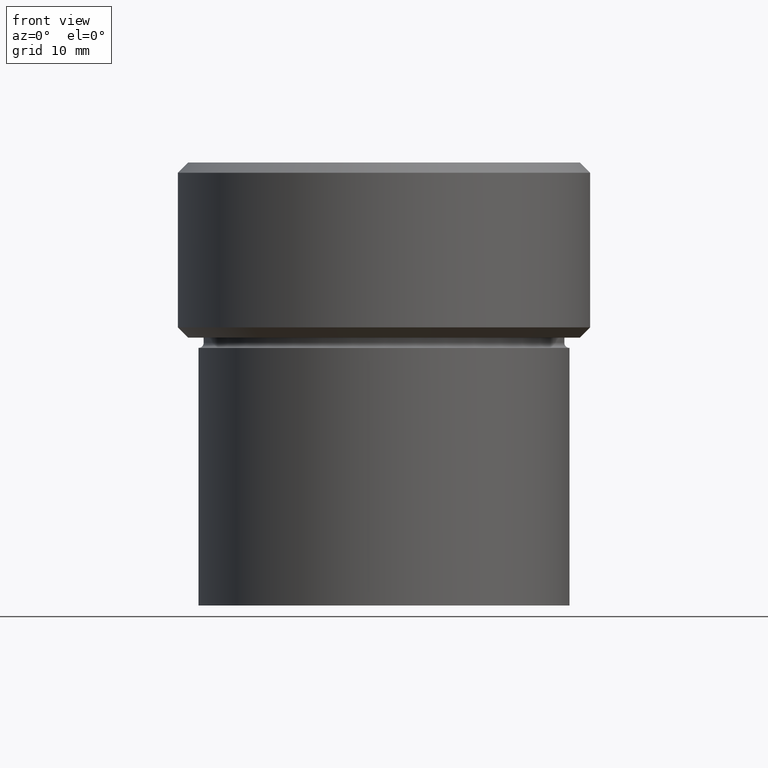
[diagram: clean part render]
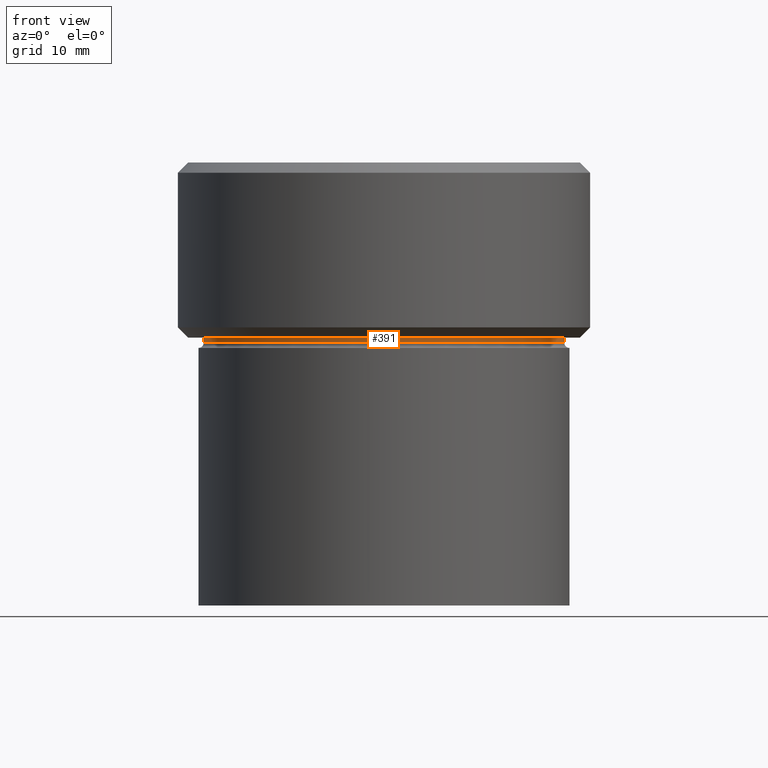
[diagram: same view with one face highlighted and labeled with its STEP entity id]
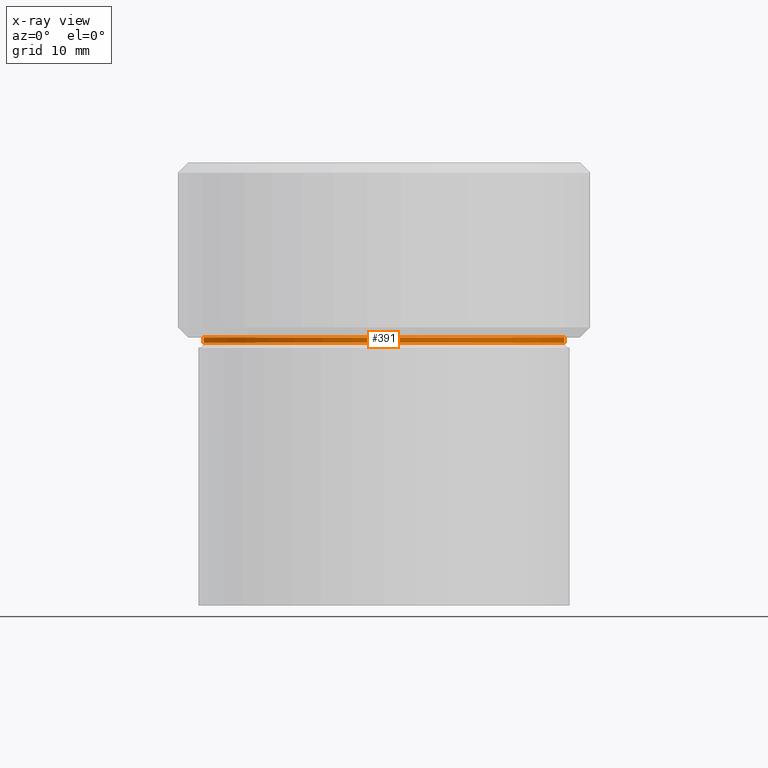
[diagram: x-ray of the same camera — body ghosted, the highlighted face saturated]
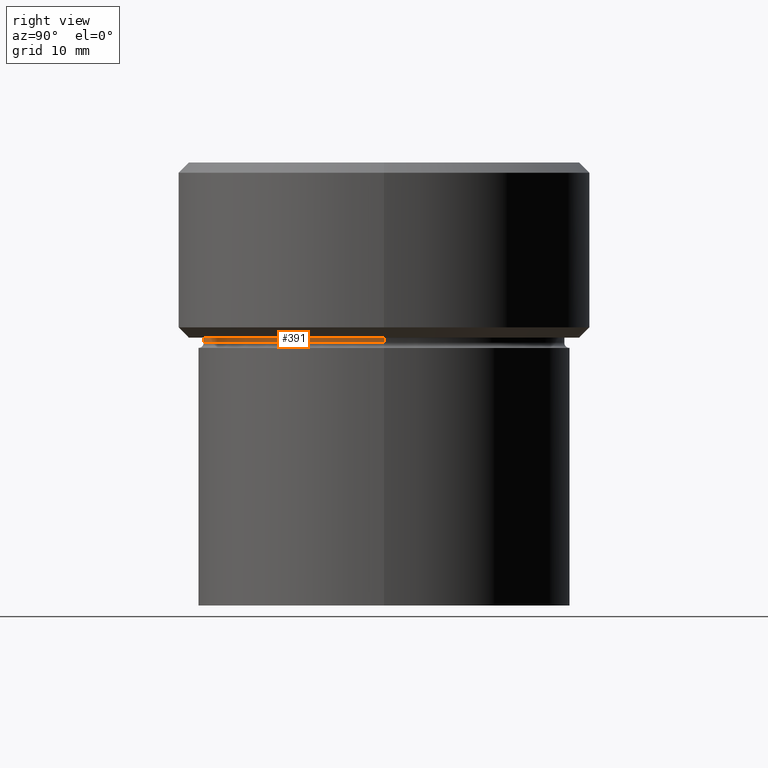
[diagram: same view with one face highlighted and labeled with its STEP entity id]
A machine part, front view. The second image highlights one B-rep face of the part: STEP entity #391.
The next image is the same camera in x-ray: the body ghosted, the highlighted face saturated — about 0% of this face is hidden behind the body in this view.
A second angle (right view) of the same face is appended — the face is thin or edge-on in the first view.
In plain terms, the highlighted cylindrical surface (partial cylindrical patch) has radius 17.5 mm, axis along (-0, -0, 1).
Its self-contained STEP definition (entity closure, byte-faithful):
#4 = DIRECTION ( 'NONE',  ( -0.000000000000000000, -0.000000000000000000, 1.000000000000000000 ) ) ;
#5 = CARTESIAN_POINT ( 'NONE',  ( 17.49999999999999645, 0.000000000000000000, -17.49999999999999645 ) ) ;
#18 = CIRCLE ( 'NONE', #497, 17.49999999999999645 ) ;
#31 = FACE_OUTER_BOUND ( 'NONE', #523, .T. ) ;
#51 = CARTESIAN_POINT ( 'NONE',  ( -17.49999999999999645, 2.143131898507867854E-15, 0.000000000000000000 ) ) ;
#55 = ORIENTED_EDGE ( 'NONE', *, *, #68, .T. ) ;
#64 = CARTESIAN_POINT ( 'NONE',  ( -17.49999999999999645, 2.143131898507867854E-15, -17.00000000000000000 ) ) ;
#68 = EDGE_CURVE ( 'NONE', #160, #368, #18, .T. ) ;
#118 = EDGE_CURVE ( 'NONE', #368, #251, #325, .T. ) ;
#157 = VERTEX_POINT ( 'NONE', #64 ) ;
#160 = VERTEX_POINT ( 'NONE', #211 ) ;
#175 = DIRECTION ( 'NONE',  ( -0.000000000000000000, -0.000000000000000000, 1.000000000000000000 ) ) ;
#180 = CIRCLE ( 'NONE', #511, 17.49999999999999645 ) ;
#211 = CARTESIAN_POINT ( 'NONE',  ( -17.49999999999999645, 2.143131898507867854E-15, -17.49999999999999645 ) ) ;
#216 = CARTESIAN_POINT ( 'NONE',  ( 0.000000000000000000, 0.000000000000000000, -17.49999999999999645 ) ) ;
#218 = CARTESIAN_POINT ( 'NONE',  ( 0.000000000000000000, 0.000000000000000000, -17.00000000000000000 ) ) ;
#228 = LINE ( 'NONE', #51, #286 ) ;
#230 = AXIS2_PLACEMENT_3D ( 'NONE', #369, #519, #365 ) ;
#251 = VERTEX_POINT ( 'NONE', #353 ) ;
#284 = ORIENTED_EDGE ( 'NONE', *, *, #118, .T. ) ;
#286 = VECTOR ( 'NONE', #175, 1000.000000000000000 ) ;
#288 = VECTOR ( 'NONE', #429, 1000.000000000000000 ) ;
#316 = ORIENTED_EDGE ( 'NONE', *, *, #445, .F. ) ;
#325 = LINE ( 'NONE', #471, #288 ) ;
#336 = DIRECTION ( 'NONE',  ( -0.000000000000000000, -0.000000000000000000, 1.000000000000000000 ) ) ;
#353 = CARTESIAN_POINT ( 'NONE',  ( 17.49999999999999645, 0.000000000000000000, -17.00000000000000000 ) ) ;
#365 = DIRECTION ( 'NONE',  ( 1.000000000000000000, 0.000000000000000000, 0.000000000000000000 ) ) ;
#368 = VERTEX_POINT ( 'NONE', #5 ) ;
#369 = CARTESIAN_POINT ( 'NONE',  ( 0.000000000000000000, 0.000000000000000000, 0.000000000000000000 ) ) ;
#384 = DIRECTION ( 'NONE',  ( 1.000000000000000000, 0.000000000000000000, 0.000000000000000000 ) ) ;
#391 = ADVANCED_FACE ( 'NONE', ( #31 ), #431, .T. ) ;
#410 = DIRECTION ( 'NONE',  ( 1.000000000000000000, 0.000000000000000000, 0.000000000000000000 ) ) ;
#411 = ORIENTED_EDGE ( 'NONE', *, *, #476, .F. ) ;
#429 = DIRECTION ( 'NONE',  ( -0.000000000000000000, -0.000000000000000000, 1.000000000000000000 ) ) ;
#431 = CYLINDRICAL_SURFACE ( 'NONE', #230, 17.49999999999999645 ) ;
#445 = EDGE_CURVE ( 'NONE', #157, #251, #180, .T. ) ;
#471 = CARTESIAN_POINT ( 'NONE',  ( 17.49999999999999645, 0.000000000000000000, 0.000000000000000000 ) ) ;
#476 = EDGE_CURVE ( 'NONE', #160, #157, #228, .T. ) ;
#497 = AXIS2_PLACEMENT_3D ( 'NONE', #216, #336, #384 ) ;
#511 = AXIS2_PLACEMENT_3D ( 'NONE', #218, #4, #410 ) ;
#519 = DIRECTION ( 'NONE',  ( -0.000000000000000000, -0.000000000000000000, 1.000000000000000000 ) ) ;
#523 = EDGE_LOOP ( 'NONE', ( #411, #55, #284, #316 ) ) ;